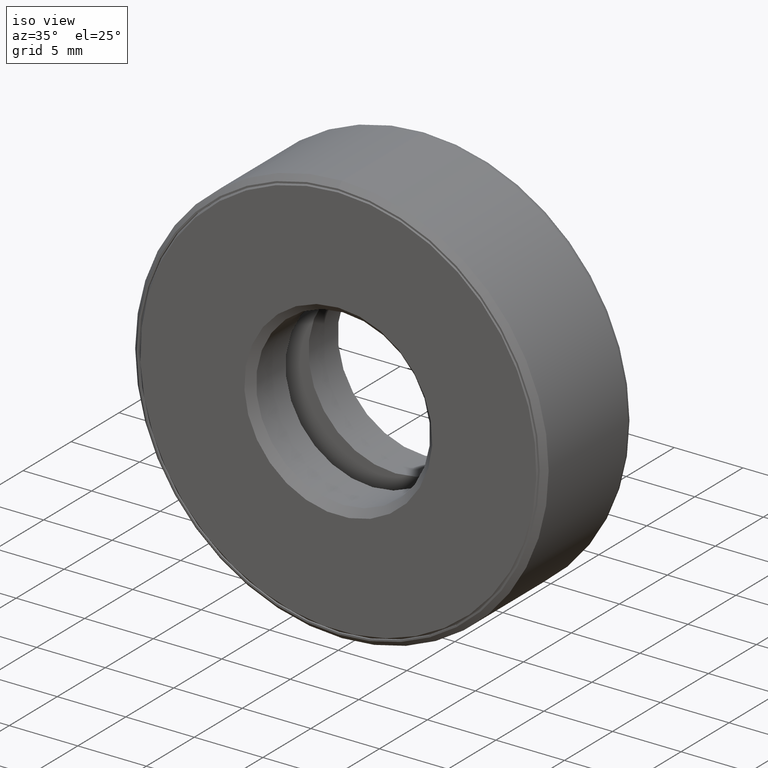
[diagram: clean part render]
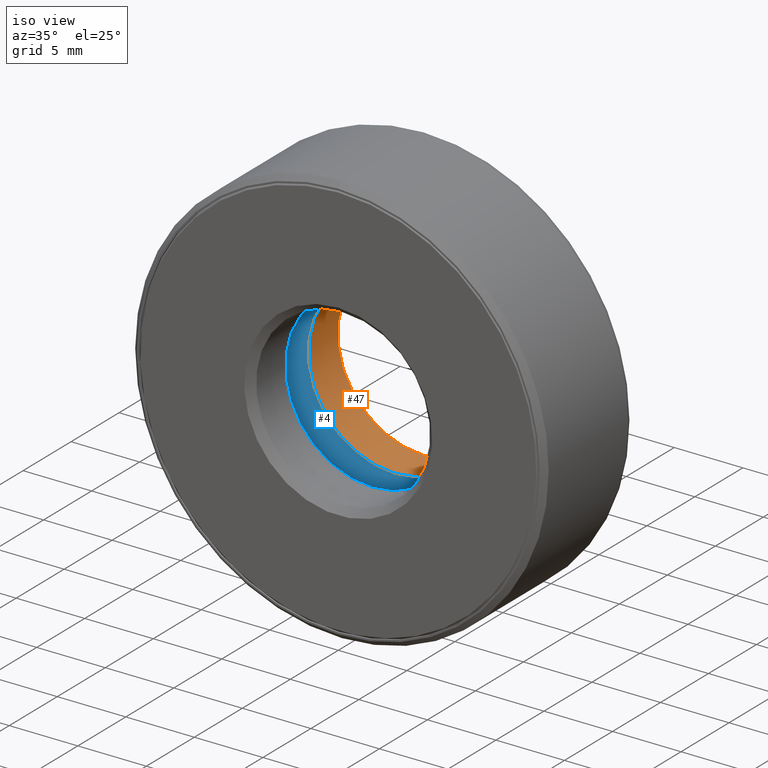
[diagram: same view with the hole feature highlighted: cylindrical wall and planar end face, labeled with their STEP entity ids]
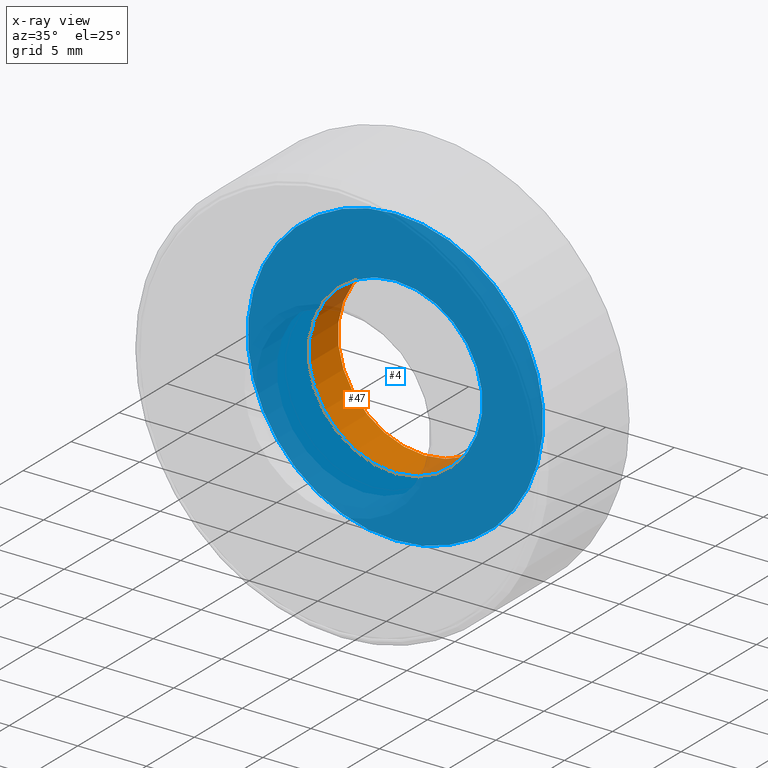
[diagram: x-ray of the same camera — body ghosted, the hole faces saturated]
A machine part, iso view. The highlighted faces form one hole feature of diameter 12.7 mm: the cylindrical wall (entity #47, orange) and its adjacent planar end face (entity #4, blue) — they share a circular edge in the B-rep.
The next image is the same camera in x-ray (body ghosted, the hole faces saturated) — the bore reads through the body.
Wall:
#23 = CARTESIAN_POINT ( 'NONE',  ( 0.0000000000000000000, 0.0000000000000000000, 0.0000000000000000000 ) ) ;
#36 = AXIS2_PLACEMENT_3D ( 'NONE', #577, #73, #208 ) ;
#41 = AXIS2_PLACEMENT_3D ( 'NONE', #23, #361, #532 ) ;
#47 = ADVANCED_FACE ( 'NONE', ( #498, #291 ), #467, .F. ) ;
#73 = DIRECTION ( 'NONE',  ( -0.0000000000000000000, 1.000000000000000000, -0.0000000000000000000 ) ) ;
#148 = CIRCLE ( 'NONE', #36, 0.2500000000000000600 ) ;
#150 = ORIENTED_EDGE ( 'NONE', *, *, #523, .F. ) ;
#156 = DIRECTION ( 'NONE',  ( 0.0000000000000000000, 0.0000000000000000000, 1.000000000000000000 ) ) ;
#208 = DIRECTION ( 'NONE',  ( 0.0000000000000000000, 0.0000000000000000000, 1.000000000000000000 ) ) ;
#261 = CARTESIAN_POINT ( 'NONE',  ( 0.0000000000000000000, 0.2343749999999999400, 0.2500000000000000000 ) ) ;
#276 = EDGE_LOOP ( 'NONE', ( #150 ) ) ;
#281 = VERTEX_POINT ( 'NONE', #261 ) ;
#291 = FACE_OUTER_BOUND ( 'NONE', #276, .T. ) ;
#312 = CARTESIAN_POINT ( 'NONE',  ( 0.0000000000000000000, 0.3549999999999999300, 0.2500000000000000600 ) ) ;
#361 = DIRECTION ( 'NONE',  ( -0.0000000000000000000, 1.000000000000000000, -0.0000000000000000000 ) ) ;
#381 = CIRCLE ( 'NONE', #413, 0.2500000000000000000 ) ;
#413 = AXIS2_PLACEMENT_3D ( 'NONE', #571, #515, #156 ) ;
#436 = EDGE_LOOP ( 'NONE', ( #491 ) ) ;
#466 = VERTEX_POINT ( 'NONE', #312 ) ;
#467 = CYLINDRICAL_SURFACE ( 'NONE', #41, 0.2500000000000000000 ) ;
#491 = ORIENTED_EDGE ( 'NONE', *, *, #533, .T. ) ;
#498 = FACE_OUTER_BOUND ( 'NONE', #436, .T. ) ;
#515 = DIRECTION ( 'NONE',  ( -0.0000000000000000000, 1.000000000000000000, -0.0000000000000000000 ) ) ;
#523 = EDGE_CURVE ( 'NONE', #281, #281, #381, .T. ) ;
#532 = DIRECTION ( 'NONE',  ( 0.0000000000000000000, 0.0000000000000000000, 1.000000000000000000 ) ) ;
#533 = EDGE_CURVE ( 'NONE', #466, #466, #148, .T. ) ;
#571 = CARTESIAN_POINT ( 'NONE',  ( 0.0000000000000000000, 0.2343749999999999400, 0.0000000000000000000 ) ) ;
#577 = CARTESIAN_POINT ( 'NONE',  ( 0.0000000000000000000, 0.3549999999999999300, 0.0000000000000000000 ) ) ;
End face:
#4 = ADVANCED_FACE ( 'NONE', ( #115, #412 ), #408, .T. ) ;
#27 = DIRECTION ( 'NONE',  ( 0.0000000000000000000, -0.0000000000000000000, -1.000000000000000000 ) ) ;
#43 = ORIENTED_EDGE ( 'NONE', *, *, #523, .T. ) ;
#45 = CARTESIAN_POINT ( 'NONE',  ( 0.0000000000000000000, 0.2343749999999999400, 0.0000000000000000000 ) ) ;
#90 = DIRECTION ( 'NONE',  ( 0.0000000000000000000, 0.0000000000000000000, 1.000000000000000000 ) ) ;
#110 = VERTEX_POINT ( 'NONE', #402 ) ;
#115 = FACE_BOUND ( 'NONE', #137, .T. ) ;
#137 = EDGE_LOOP ( 'NONE', ( #43 ) ) ;
#156 = DIRECTION ( 'NONE',  ( 0.0000000000000000000, 0.0000000000000000000, 1.000000000000000000 ) ) ;
#171 = CIRCLE ( 'NONE', #315, 0.4241249999999998100 ) ;
#176 = EDGE_CURVE ( 'NONE', #110, #110, #171, .T. ) ;
#261 = CARTESIAN_POINT ( 'NONE',  ( 0.0000000000000000000, 0.2343749999999999400, 0.2500000000000000000 ) ) ;
#281 = VERTEX_POINT ( 'NONE', #261 ) ;
#313 = ORIENTED_EDGE ( 'NONE', *, *, #176, .F. ) ;
#315 = AXIS2_PLACEMENT_3D ( 'NONE', #45, #492, #90 ) ;
#381 = CIRCLE ( 'NONE', #413, 0.2500000000000000000 ) ;
#402 = CARTESIAN_POINT ( 'NONE',  ( 0.0000000000000000000, 0.2343749999999999400, 0.4241249999999998100 ) ) ;
#408 = PLANE ( 'NONE',  #473 ) ;
#412 = FACE_OUTER_BOUND ( 'NONE', #543, .T. ) ;
#413 = AXIS2_PLACEMENT_3D ( 'NONE', #571, #515, #156 ) ;
#450 = CARTESIAN_POINT ( 'NONE',  ( 0.0000000000000000000, 0.2343749999999999400, 0.0000000000000000000 ) ) ;
#473 = AXIS2_PLACEMENT_3D ( 'NONE', #450, #584, #27 ) ;
#492 = DIRECTION ( 'NONE',  ( -0.0000000000000000000, 1.000000000000000000, -0.0000000000000000000 ) ) ;
#515 = DIRECTION ( 'NONE',  ( -0.0000000000000000000, 1.000000000000000000, -0.0000000000000000000 ) ) ;
#523 = EDGE_CURVE ( 'NONE', #281, #281, #381, .T. ) ;
#543 = EDGE_LOOP ( 'NONE', ( #313 ) ) ;
#571 = CARTESIAN_POINT ( 'NONE',  ( 0.0000000000000000000, 0.2343749999999999400, 0.0000000000000000000 ) ) ;
#584 = DIRECTION ( 'NONE',  ( 0.0000000000000000000, -1.000000000000000000, 0.0000000000000000000 ) ) ;